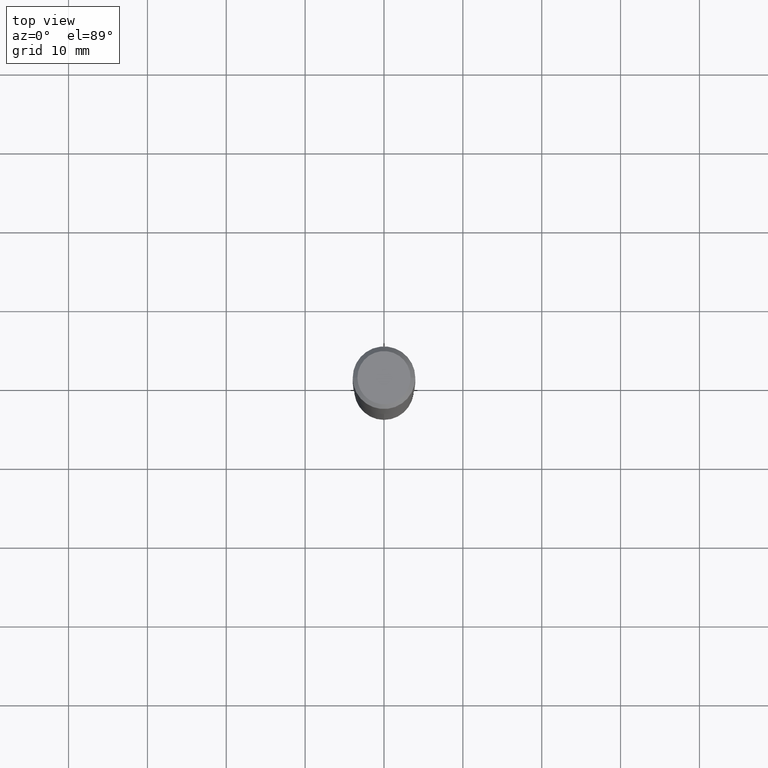
[diagram: clean part render]
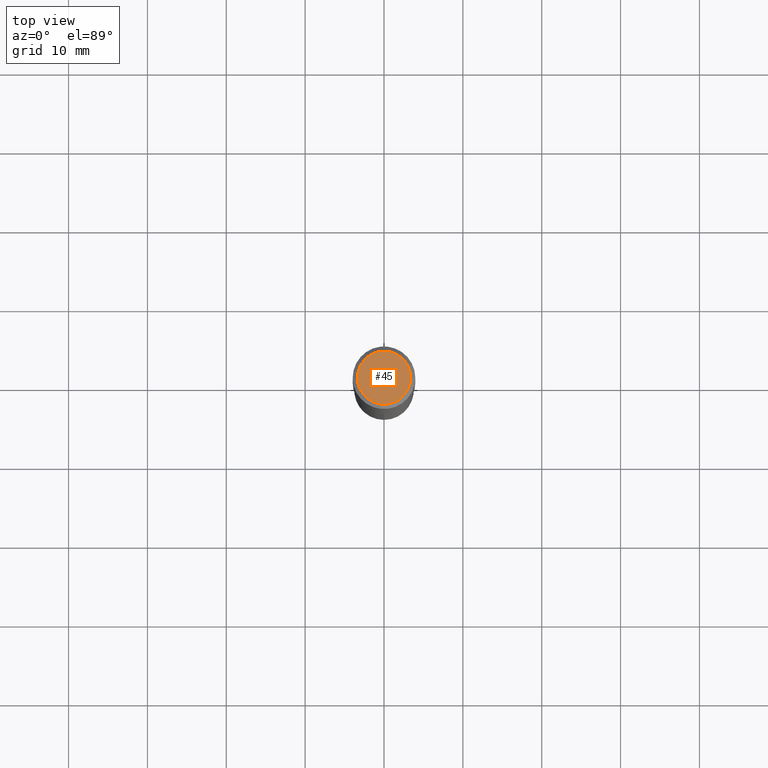
[diagram: same view with one face highlighted and labeled with its STEP entity id]
A machine part, top view. The second image highlights one B-rep face of the part: STEP entity #45.
In plain terms, the highlighted planar face has unit normal (0, -0, -1).
Its self-contained STEP definition (entity closure, byte-faithful):
#39 = VERTEX_POINT ( 'NONE', #389 ) ;
#42 = FACE_OUTER_BOUND ( 'NONE', #223, .T. ) ;
#44 = DIRECTION ( 'NONE',  ( 2.438088387897960049E-29, -3.491481338843145188E-15, -1.000000000000000000 ) ) ;
#45 = ADVANCED_FACE ( 'NONE', ( #42 ), #164, .F. ) ;
#59 = CIRCLE ( 'NONE', #166, 0.1328125000000000000 ) ;
#64 = AXIS2_PLACEMENT_3D ( 'NONE', #199, #44, #357 ) ;
#73 = VERTEX_POINT ( 'NONE', #201 ) ;
#78 = DIRECTION ( 'NONE',  ( 1.000000000000000000, -6.982962677686268288E-15, 4.876286914311434227E-29 ) ) ;
#125 = DIRECTION ( 'NONE',  ( -2.445468806185136597E-29, 3.491481338843145583E-15, 1.000000000000000000 ) ) ;
#136 = DIRECTION ( 'NONE',  ( -2.445468806185136597E-29, 3.491481338843145583E-15, 1.000000000000000000 ) ) ;
#155 = CARTESIAN_POINT ( 'NONE',  ( -7.955031918821654702E-47, 1.135767727816384474E-32, 3.252968060235159383E-18 ) ) ;
#164 = PLANE ( 'NONE',  #64 ) ;
#166 = AXIS2_PLACEMENT_3D ( 'NONE', #155, #125, #78 ) ;
#176 = EDGE_CURVE ( 'NONE', #73, #39, #350, .T. ) ;
#196 = AXIS2_PLACEMENT_3D ( 'NONE', #478, #136, #441 ) ;
#199 = CARTESIAN_POINT ( 'NONE',  ( -3.977515959410827351E-47, 5.678838639081922371E-33, 1.626484030117579692E-18 ) ) ;
#201 = CARTESIAN_POINT ( 'NONE',  ( -0.1328125000000000000, 9.683405275697749214E-16, 3.252968060228530332E-18 ) ) ;
#223 = EDGE_LOOP ( 'NONE', ( #265, #407 ) ) ;
#265 = ORIENTED_EDGE ( 'NONE', *, *, #176, .T. ) ;
#350 = CIRCLE ( 'NONE', #196, 0.1328125000000000000 ) ;
#357 = DIRECTION ( 'NONE',  ( -1.000000000000000000, 6.982962677686265922E-15, -4.876176775795935793E-29 ) ) ;
#389 = CARTESIAN_POINT ( 'NONE',  ( 0.1328125000000000000, -1.032472148179985084E-15, 3.252968060242011842E-18 ) ) ;
#407 = ORIENTED_EDGE ( 'NONE', *, *, #455, .T. ) ;
#441 = DIRECTION ( 'NONE',  ( 1.000000000000000000, -6.982962677686268288E-15, 4.876286914311434227E-29 ) ) ;
#455 = EDGE_CURVE ( 'NONE', #39, #73, #59, .T. ) ;
#478 = CARTESIAN_POINT ( 'NONE',  ( -7.955031918821654702E-47, 1.135767727816384474E-32, 3.252968060235159383E-18 ) ) ;